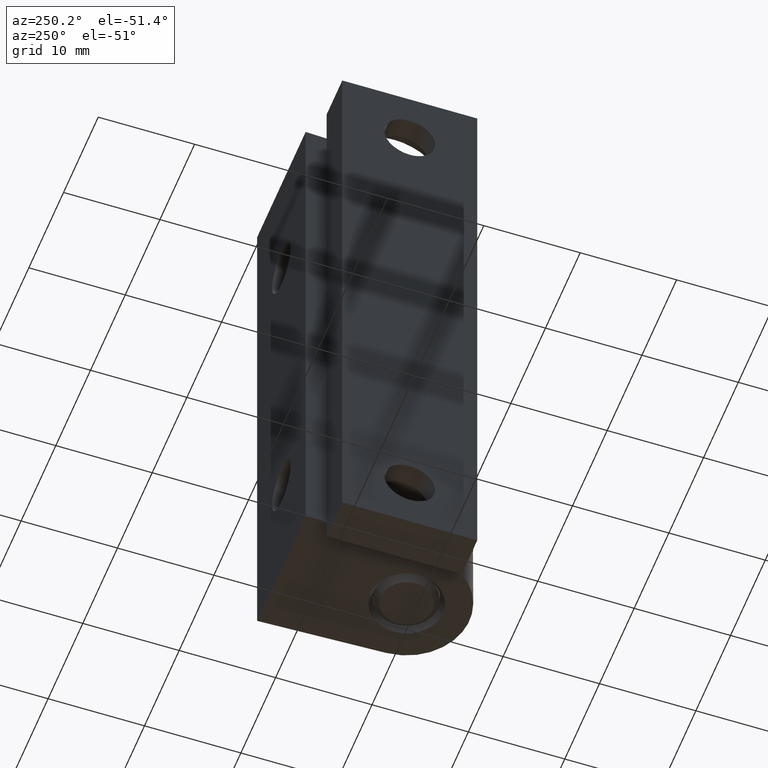
[diagram: clean part render]
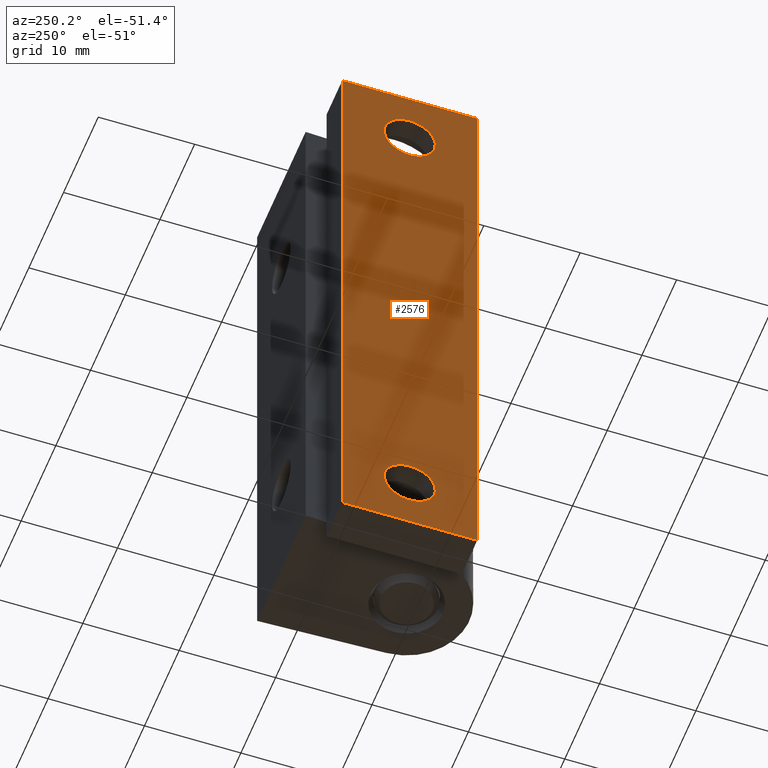
[diagram: same view with one face highlighted and labeled with its STEP entity id]
A machine part, auxiliary view. The second image highlights one B-rep face of the part: STEP entity #2576.
In plain terms, the highlighted face is a freeform B-spline surface patch.
Its self-contained STEP definition (entity closure, byte-faithful):
#1423=CARTESIAN_POINT('',(-12.000000569969419,5.425304175163106,59.234058836840887));
#1424=VERTEX_POINT('',#1423);
#1430=CARTESIAN_POINT('',(-12.000000569969419,3.999999572522890,54.350002707355202));
#1431=VERTEX_POINT('',#1430);
#1432=CARTESIAN_POINT('',(-12.000000569969419,3.999999572522890,54.350002707355202));
#1433=CARTESIAN_POINT('',(-12.000000569969417,6.649999572522892,54.350002707355202));
#1434=CARTESIAN_POINT('',(-12.000000569969419,6.649999572522891,57.000002707355200));
#1435=CARTESIAN_POINT('',(-12.000000569969419,6.649999572522892,58.452715895782198));
#1436=CARTESIAN_POINT('',(-12.000000569969423,5.425304175163106,59.234058836840894));
#1444=(BOUNDED_CURVE()B_SPLINE_CURVE(2,(#1432,#1433,#1434,#1435,#1436),.UNSPECIFIED.,.F.,.U.)B_SPLINE_CURVE_WITH_KNOTS((3,2,3),(0.0,0.250000000000000,0.407950112626507),.UNSPECIFIED.)CURVE()GEOMETRIC_REPRESENTATION_ITEM()RATIONAL_B_SPLINE_CURVE((1.0,0.707106781186548,1.0,0.814949932403500,0.863729296954279))REPRESENTATION_ITEM(''));
#1445=EDGE_CURVE('',#1431,#1424,#1444,.T.);
#1447=CARTESIAN_POINT('',(-12.000000569969419,1.358168638131238,57.207919311048443));
#1448=VERTEX_POINT('',#1447);
#1449=CARTESIAN_POINT('',(-12.000000569969421,1.358168638131238,57.207919311048435));
#1450=CARTESIAN_POINT('',(-12.000000569969423,1.349999572522890,57.104121490940045));
#1451=CARTESIAN_POINT('',(-12.000000569969419,1.349999572522890,57.000002707355200));
#1452=CARTESIAN_POINT('',(-12.000000569969417,1.349999572522890,54.350002707355202));
#1453=CARTESIAN_POINT('',(-12.000000569969419,3.999999572522890,54.350002707355202));
#1461=(BOUNDED_CURVE()B_SPLINE_CURVE(2,(#1449,#1450,#1451,#1452,#1453),.UNSPECIFIED.,.F.,.U.)B_SPLINE_CURVE_WITH_KNOTS((3,2,3),(0.736331300630892,0.750000000000000,1.0),.UNSPECIFIED.)CURVE()GEOMETRIC_REPRESENTATION_ITEM()RATIONAL_B_SPLINE_CURVE((0.969723356167903,0.983986122579154,1.0,0.707106781186548,1.0))REPRESENTATION_ITEM(''));
#1462=EDGE_CURVE('',#1448,#1431,#1461,.T.);
#1566=CARTESIAN_POINT('',(-12.000000569969419,3.999999572522890,59.650002707355213));
#1567=VERTEX_POINT('',#1566);
#1568=CARTESIAN_POINT('',(-12.000000569969419,3.999999572522890,59.650002707355213));
#1569=CARTESIAN_POINT('',(-12.000000569969416,1.550364769655515,59.650002707355213));
#1570=CARTESIAN_POINT('',(-12.000000569969419,1.358168638131238,57.207919311048443));
#1578=(BOUNDED_CURVE()B_SPLINE_CURVE(2,(#1568,#1569,#1570),.UNSPECIFIED.,.F.,.U.)B_SPLINE_CURVE_WITH_KNOTS((3,3),(0.500000000000000,0.736331300630892),.UNSPECIFIED.)CURVE()GEOMETRIC_REPRESENTATION_ITEM()RATIONAL_B_SPLINE_CURVE((1.0,0.723120658607393,0.969723356167903))REPRESENTATION_ITEM(''));
#1579=EDGE_CURVE('',#1567,#1448,#1578,.T.);
#1581=CARTESIAN_POINT('',(-12.000000569969423,5.425304175163106,59.234058836840894));
#1582=CARTESIAN_POINT('',(-12.000000569969421,4.773343919287953,59.650002707355206));
#1583=CARTESIAN_POINT('',(-12.000000569969419,3.999999572522890,59.650002707355213));
#1591=(BOUNDED_CURVE()B_SPLINE_CURVE(2,(#1581,#1582,#1583),.UNSPECIFIED.,.F.,.U.)B_SPLINE_CURVE_WITH_KNOTS((3,3),(0.407950112626507,0.500000000000000),.UNSPECIFIED.)CURVE()GEOMETRIC_REPRESENTATION_ITEM()RATIONAL_B_SPLINE_CURVE((0.863729296954279,0.892156848783047,1.0))REPRESENTATION_ITEM(''));
#1592=EDGE_CURVE('',#1424,#1567,#1591,.T.);
#1761=CARTESIAN_POINT('',(-12.000000569969419,6.632692935119103,2.697633380857592));
#1762=VERTEX_POINT('',#1761);
#1768=CARTESIAN_POINT('',(-12.000000569969419,3.999999572522890,0.350000142492935));
#1769=VERTEX_POINT('',#1768);
#1770=CARTESIAN_POINT('',(-12.000000569969423,6.632692935119103,2.697633380857592));
#1771=CARTESIAN_POINT('',(-12.000000569969417,6.363065537545403,0.350000142492935));
#1772=CARTESIAN_POINT('',(-12.000000569969419,3.999999572522890,0.350000142492935));
#1780=(BOUNDED_CURVE()B_SPLINE_CURVE(2,(#1770,#1771,#1772),.UNSPECIFIED.,.F.,.U.)B_SPLINE_CURVE_WITH_KNOTS((3,3),(0.269767755886044,0.500000000000000),.UNSPECIFIED.)CURVE()GEOMETRIC_REPRESENTATION_ITEM()RATIONAL_B_SPLINE_CURVE((0.957343736442052,0.730266147787276,1.0))REPRESENTATION_ITEM(''));
#1781=EDGE_CURVE('',#1762,#1769,#1780,.T.);
#1783=CARTESIAN_POINT('',(-12.000000569969419,1.354942356705977,2.838221512708661));
#1784=VERTEX_POINT('',#1783);
#1785=CARTESIAN_POINT('',(-12.000000569969419,3.999999572522890,0.350000142492935));
#1786=CARTESIAN_POINT('',(-12.000000569969421,1.507128495254730,0.350000142492935));
#1787=CARTESIAN_POINT('',(-12.000000569969421,1.354942356705977,2.838221512708662));
#1795=(BOUNDED_CURVE()B_SPLINE_CURVE(2,(#1785,#1786,#1787),.UNSPECIFIED.,.F.,.U.)B_SPLINE_CURVE_WITH_KNOTS((3,3),(0.500000000000000,0.739332962239762),.UNSPECIFIED.)CURVE()GEOMETRIC_REPRESENTATION_ITEM()RATIONAL_B_SPLINE_CURVE((1.0,0.719603993285750,0.976072041668474))REPRESENTATION_ITEM(''));
#1796=EDGE_CURVE('',#1769,#1784,#1795,.T.);
#1891=CARTESIAN_POINT('',(-12.000000569969419,3.999999572522890,5.650000142492934));
#1892=VERTEX_POINT('',#1891);
#1893=CARTESIAN_POINT('',(-12.000000569969419,1.354942356705976,2.838221512708661));
#1894=CARTESIAN_POINT('',(-12.000000569969421,1.349999572522890,2.919035319734724));
#1895=CARTESIAN_POINT('',(-12.000000569969419,1.349999572522890,3.000000142492935));
#1896=CARTESIAN_POINT('',(-12.000000569969417,1.349999572522890,5.650000142492936));
#1897=CARTESIAN_POINT('',(-12.000000569969419,3.999999572522890,5.650000142492934));
#1905=(BOUNDED_CURVE()B_SPLINE_CURVE(2,(#1893,#1894,#1895,#1896,#1897),.UNSPECIFIED.,.F.,.U.)B_SPLINE_CURVE_WITH_KNOTS((3,2,3),(0.739332962239763,0.750000000000000,1.0),.UNSPECIFIED.)CURVE()GEOMETRIC_REPRESENTATION_ITEM()RATIONAL_B_SPLINE_CURVE((0.976072041668475,0.987502787900798,1.0,0.707106781186548,1.0))REPRESENTATION_ITEM(''));
#1906=EDGE_CURVE('',#1784,#1892,#1905,.T.);
#1908=CARTESIAN_POINT('',(-12.000000569969419,3.999999572522890,5.650000142492934));
#1909=CARTESIAN_POINT('',(-12.000000569969417,6.649999572522892,5.650000142492936));
#1910=CARTESIAN_POINT('',(-12.000000569969419,6.649999572522891,3.000000142492935));
#1911=CARTESIAN_POINT('',(-12.000000569969423,6.649999572522891,2.848321469601797));
#1912=CARTESIAN_POINT('',(-12.000000569969425,6.632692935119104,2.697633380857592));
#1920=(BOUNDED_CURVE()B_SPLINE_CURVE(2,(#1908,#1909,#1910,#1911,#1912),.UNSPECIFIED.,.F.,.U.)B_SPLINE_CURVE_WITH_KNOTS((3,2,3),(0.0,0.250000000000000,0.269767755886045),.UNSPECIFIED.)CURVE()GEOMETRIC_REPRESENTATION_ITEM()RATIONAL_B_SPLINE_CURVE((1.0,0.707106781186548,1.0,0.976840633399272,0.957343736442052))REPRESENTATION_ITEM(''));
#1921=EDGE_CURVE('',#1892,#1762,#1920,.T.);
#2412=CARTESIAN_POINT('',(-12.000000569969419,-3.000000142492370,-3.000000142491800));
#2413=VERTEX_POINT('',#2412);
#2419=CARTESIAN_POINT('',(-12.000000569969419,11.000000522471939,-3.000000142491800));
#2420=VERTEX_POINT('',#2419);
#2421=CARTESIAN_POINT('',(-12.000000569969419,-3.000000142492370,-3.000000142491800));
#2422=CARTESIAN_POINT('',(-12.000000569969419,11.000000522471939,-3.000000142491800));
#2423=QUASI_UNIFORM_CURVE('',1,(#2421,#2422),.UNSPECIFIED.,.F.,.U.);
#2424=EDGE_CURVE('',#2413,#2420,#2423,.T.);
#2448=CARTESIAN_POINT('',(-12.000000569969419,-3.000000142492370,63.000002992340001));
#2449=VERTEX_POINT('',#2448);
#2462=CARTESIAN_POINT('',(-12.000000569969419,11.000000522471939,63.000002992340001));
#2463=VERTEX_POINT('',#2462);
#2469=CARTESIAN_POINT('',(-12.000000569969419,-3.000000142492370,63.000002992340001));
#2470=CARTESIAN_POINT('',(-12.000000569969419,11.000000522471939,63.000002992340001));
#2471=QUASI_UNIFORM_CURVE('',1,(#2469,#2470),.UNSPECIFIED.,.F.,.U.);
#2472=EDGE_CURVE('',#2449,#2463,#2471,.T.);
#2483=CARTESIAN_POINT('',(-12.000000569969419,11.000000522471939,63.000002992340001));
#2484=CARTESIAN_POINT('',(-12.000000569969419,11.000000522471939,-3.000000142491800));
#2485=QUASI_UNIFORM_CURVE('',1,(#2483,#2484),.UNSPECIFIED.,.F.,.U.);
#2486=EDGE_CURVE('',#2463,#2420,#2485,.T.);
#2517=CARTESIAN_POINT('',(-12.000000569969419,-3.000000142492370,63.000002992340001));
#2518=CARTESIAN_POINT('',(-12.000000569969419,-3.000000142492370,-3.000000142491800));
#2519=QUASI_UNIFORM_CURVE('',1,(#2517,#2518),.UNSPECIFIED.,.F.,.U.);
#2520=EDGE_CURVE('',#2449,#2413,#2519,.T.);
#2553=CARTESIAN_POINT('',(-12.000000569969419,-3.699300279994610,-6.296700171155836));
#2554=CARTESIAN_POINT('',(-12.000000569969419,-3.699300279994610,66.296704791262073));
#2555=CARTESIAN_POINT('',(-12.000000569969419,11.699300910313699,-6.296700171155836));
#2556=CARTESIAN_POINT('',(-12.000000569969419,11.699300910313699,66.296704791262073));
#2557=B_SPLINE_SURFACE_WITH_KNOTS('',1,1,((#2553,#2555),(#2554,#2556)),.UNSPECIFIED.,.F.,.F.,.U.,(2,2),(2,2),(0.0,72.593404962417907),(0.0,15.398601190308311),.UNSPECIFIED.);
#2558=ORIENTED_EDGE('',*,*,#2424,.F.);
#2559=ORIENTED_EDGE('',*,*,#2520,.F.);
#2560=ORIENTED_EDGE('',*,*,#2472,.T.);
#2561=ORIENTED_EDGE('',*,*,#2486,.T.);
#2562=EDGE_LOOP('',(#2558,#2559,#2560,#2561));
#2563=FACE_OUTER_BOUND('',#2562,.T.);
#2564=ORIENTED_EDGE('',*,*,#1796,.F.);
#2565=ORIENTED_EDGE('',*,*,#1781,.F.);
#2566=ORIENTED_EDGE('',*,*,#1921,.F.);
#2567=ORIENTED_EDGE('',*,*,#1906,.F.);
#2568=EDGE_LOOP('',(#2564,#2565,#2566,#2567));
#2569=FACE_BOUND('',#2568,.T.);
#2570=ORIENTED_EDGE('',*,*,#1579,.T.);
#2571=ORIENTED_EDGE('',*,*,#1462,.T.);
#2572=ORIENTED_EDGE('',*,*,#1445,.T.);
#2573=ORIENTED_EDGE('',*,*,#1592,.T.);
#2574=EDGE_LOOP('',(#2570,#2571,#2572,#2573));
#2575=FACE_BOUND('',#2574,.T.);
#2576=ADVANCED_FACE('',(#2563,#2569,#2575),#2557,.T.);